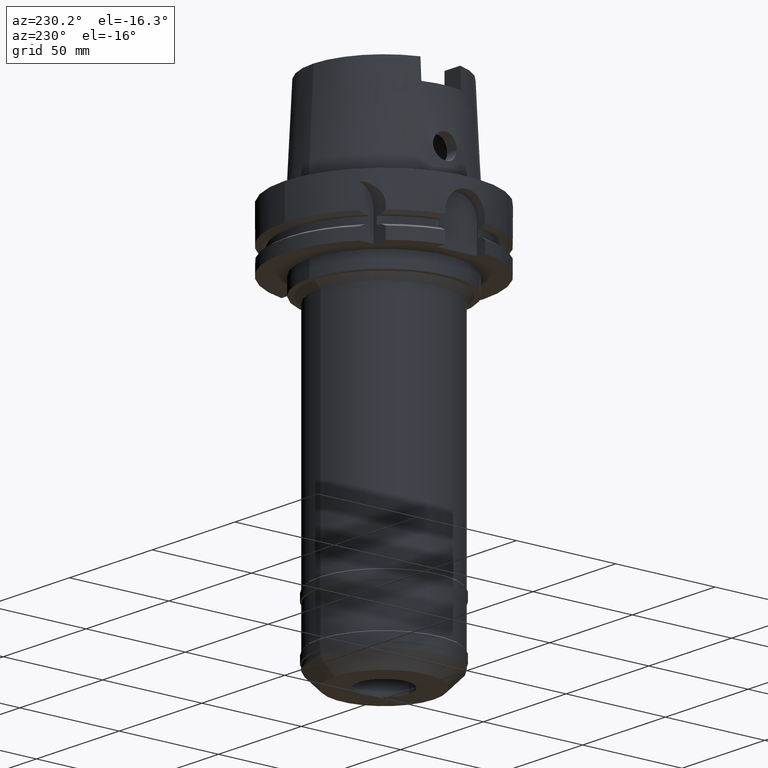
[diagram: clean part render]
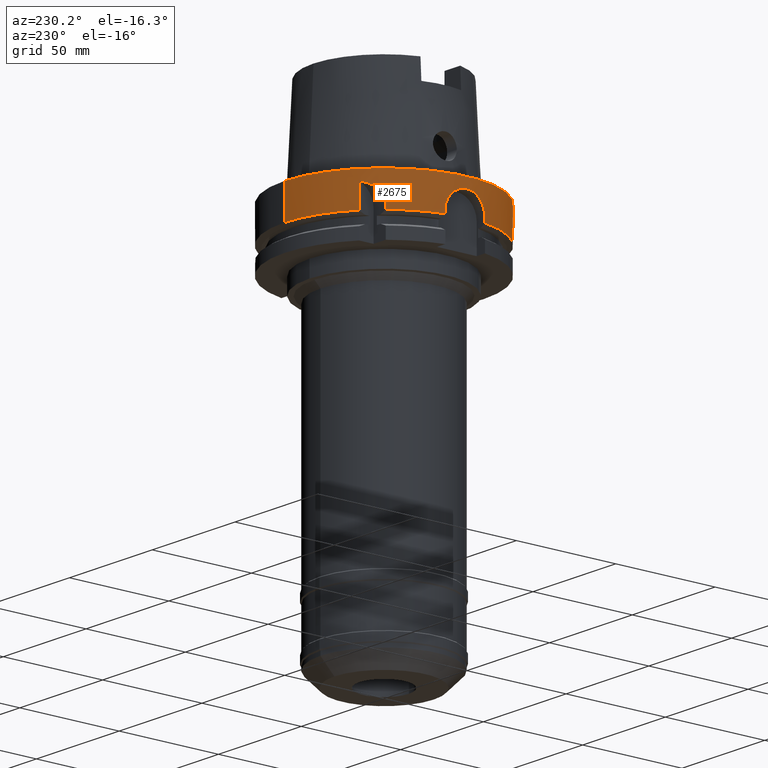
[diagram: same view with one face highlighted and labeled with its STEP entity id]
A machine part, auxiliary view. The second image highlights one B-rep face of the part: STEP entity #2675.
In plain terms, the highlighted cylindrical surface (partial cylindrical patch) has radius 50 mm, axis along (0, 0, 1).
Its self-contained STEP definition (entity closure, byte-faithful):
#342=CARTESIAN_POINT('',(0.E0,0.E0,0.E0));
#343=DIRECTION('',(0.E0,0.E0,-1.E0));
#344=DIRECTION('',(0.E0,-1.E0,0.E0));
#345=AXIS2_PLACEMENT_3D('',#342,#343,#344);
#374=DIRECTION('',(-3.028823767049E-7,-2.457085509676E-7,-9.999999999999E-1));
#375=VECTOR('',#374,1.175239179145E1);
#376=CARTESIAN_POINT('',(-3.15E1,3.882975663071E1,-5.000000000003E0));
#377=LINE('',#376,#375);
#381=DIRECTION('',(0.E0,2.969006079282E-14,-1.E0));
#382=VECTOR('',#381,1.675240473581E1);
#383=CARTESIAN_POINT('',(0.E0,-5.E1,0.E0));
#384=LINE('',#383,#382);
#388=DIRECTION('',(3.933032361779E-13,-2.534170336198E-14,1.E0));
#389=VECTOR('',#388,1.752404735809E0);
#390=CARTESIAN_POINT('',(-4.898979485566E1,-1.E1,-1.675240473581E1));
#391=LINE('',#390,#389);
#395=DIRECTION('',(-4.014125812538E-13,-2.635537149646E-14,-1.E0));
#396=VECTOR('',#395,1.752404735809E0);
#397=CARTESIAN_POINT('',(-4.898979485566E1,1.E1,-1.5E1));
#398=LINE('',#397,#396);
#402=DIRECTION('',(3.166955095330E-7,3.903884141536E-7,9.999999999999E-1));
#403=VECTOR('',#402,2.115509879696E0);
#404=CARTESIAN_POINT('',(-3.882975730068E1,3.149999917413E1,-1.675240773890E1));
#405=LINE('',#404,#403);
#409=CARTESIAN_POINT('',(-3.882975663071E1,3.15E1,-1.463689785920E1));
#410=CARTESIAN_POINT('',(-3.882975663071E1,3.15E1,-1.430492284043E1));
#411=CARTESIAN_POINT('',(-3.880306305411E1,3.153294676414E1,-1.364354479585E1));
#412=CARTESIAN_POINT('',(-3.868260618181E1,3.168085936961E1,-1.265734999215E1));
#413=CARTESIAN_POINT('',(-3.847869870973E1,3.192864492541E1,-1.168255826739E1));
#414=CARTESIAN_POINT('',(-3.818849911288E1,3.227581151035E1,-1.073028777271E1));
#415=CARTESIAN_POINT('',(-3.780492601517E1,3.272509106439E1,-9.803815114848E0));
#416=CARTESIAN_POINT('',(-3.732217201219E1,3.327569357448E1,-8.915625450328E0));
#417=CARTESIAN_POINT('',(-3.672707010142E1,3.393274471826E1,-8.069760260003E0));
#418=CARTESIAN_POINT('',(-3.601005215370E1,3.469438338202E1,-7.282017628278E0));
#419=CARTESIAN_POINT('',(-3.515380475181E1,3.556378570305E1,-6.562256664588E0));
#420=CARTESIAN_POINT('',(-3.413834344921E1,3.654215691419E1,-5.925485466514E0));
#421=CARTESIAN_POINT('',(-3.294304152099E1,3.762639641413E1,-5.390150736852E0));
#422=CARTESIAN_POINT('',(-3.200581941704E1,3.841941896652E1,-5.113698561819E0));
#423=CARTESIAN_POINT('',(-3.15E1,3.882975663071E1,-5.000000000003E0));
#568=CARTESIAN_POINT('',(0.E0,0.E0,-1.675240473581E1));
#569=DIRECTION('',(0.E0,0.E0,1.E0));
#570=DIRECTION('',(-7.765951326142E-1,6.3E-1,0.E0));
#571=AXIS2_PLACEMENT_3D('',#568,#569,#570);
#709=CARTESIAN_POINT('',(-4.898979485566E1,1.E1,-1.5E1));
#710=CARTESIAN_POINT('',(-4.898979485566E1,1.E1,-1.420415622963E1));
#711=CARTESIAN_POINT('',(-4.902948719698E1,9.809113072725E0,-1.260616822388E1));
#712=CARTESIAN_POINT('',(-4.919619653332E1,8.952747853454E0,-1.032786855290E1));
#713=CARTESIAN_POINT('',(-4.943361285315E1,7.564353864003E0,-8.308027870382E0));
#714=CARTESIAN_POINT('',(-4.968504833387E1,5.724733146835E0,-6.680051649924E0));
#715=CARTESIAN_POINT('',(-4.989058109186E1,3.559312314136E0,-5.550486982688E0));
#716=CARTESIAN_POINT('',(-5.000467878483E1,1.205525729352E0,-4.975889669452E0));
#717=CARTESIAN_POINT('',(-5.000461128930E1,-1.208480370273E0,
-4.976255620472E0));
#718=CARTESIAN_POINT('',(-4.989038623941E1,-3.561992694706E0,
-5.551493353084E0));
#719=CARTESIAN_POINT('',(-4.968476382E1,-5.727174752329E0,-6.681739813675E0));
#720=CARTESIAN_POINT('',(-4.943331925418E1,-7.566227057507E0,
-8.310130075757E0));
#721=CARTESIAN_POINT('',(-4.919592738318E1,-8.954227214303E0,
-1.033067458653E1));
#722=CARTESIAN_POINT('',(-4.902936827483E1,-9.809622582661E0,
-1.260874144530E1));
#723=CARTESIAN_POINT('',(-4.898979485566E1,-1.E1,-1.420518581019E1));
#724=CARTESIAN_POINT('',(-4.898979485566E1,-1.E1,-1.5E1));
#790=CARTESIAN_POINT('',(0.E0,0.E0,-1.675240473581E1));
#791=DIRECTION('',(0.E0,0.E0,1.E0));
#792=DIRECTION('',(-9.797958971133E-1,-2.E-1,0.E0));
#793=AXIS2_PLACEMENT_3D('',#790,#791,#792);
#837=DIRECTION('',(0.E0,-2.969006079282E-14,-1.E0));
#838=VECTOR('',#837,1.675240473581E1);
#839=CARTESIAN_POINT('',(0.E0,5.E1,0.E0));
#840=LINE('',#839,#838);
#1126=CARTESIAN_POINT('',(0.E0,0.E0,-1.675240473581E1));
#1127=DIRECTION('',(0.E0,0.E0,1.E0));
#1128=DIRECTION('',(0.E0,1.E0,0.E0));
#1129=AXIS2_PLACEMENT_3D('',#1126,#1127,#1128);
#2162=CARTESIAN_POINT('',(0.E0,-5.E1,0.E0));
#2163=CARTESIAN_POINT('',(0.E0,5.E1,0.E0));
#2164=VERTEX_POINT('',#2162);
#2165=VERTEX_POINT('',#2163);
#2166=CARTESIAN_POINT('',(-3.15E1,3.882975663071E1,-5.000000000003E0));
#2167=CARTESIAN_POINT('',(-3.150000355959E1,3.882975374305E1,
-1.675239179145E1));
#2168=VERTEX_POINT('',#2166);
#2169=VERTEX_POINT('',#2167);
#2170=CARTESIAN_POINT('',(0.E0,5.E1,-1.675240473581E1));
#2171=VERTEX_POINT('',#2170);
#2172=CARTESIAN_POINT('',(0.E0,-5.E1,-1.675240473581E1));
#2173=VERTEX_POINT('',#2172);
#2174=CARTESIAN_POINT('',(-4.898979485566E1,-1.E1,-1.675240473581E1));
#2175=VERTEX_POINT('',#2174);
#2176=CARTESIAN_POINT('',(-4.898979485566E1,-1.E1,-1.5E1));
#2177=VERTEX_POINT('',#2176);
#2178=VERTEX_POINT('',#709);
#2179=CARTESIAN_POINT('',(-4.898979485566E1,1.E1,-1.675240473581E1));
#2180=VERTEX_POINT('',#2179);
#2181=CARTESIAN_POINT('',(-3.882975663071E1,3.15E1,-1.675240473581E1));
#2182=VERTEX_POINT('',#2181);
#2183=CARTESIAN_POINT('',(-3.882975663071E1,3.15E1,-1.463689785920E1));
#2184=VERTEX_POINT('',#2183);
#2645=CARTESIAN_POINT('',(0.E0,0.E0,-2.0725E2));
#2646=DIRECTION('',(0.E0,0.E0,1.E0));
#2647=DIRECTION('',(0.E0,1.E0,0.E0));
#2648=AXIS2_PLACEMENT_3D('',#2645,#2646,#2647);
#2649=CYLINDRICAL_SURFACE('',#2648,5.E1);
#2651=ORIENTED_EDGE('',*,*,#2650,.T.);
#2653=ORIENTED_EDGE('',*,*,#2652,.F.);
#2655=ORIENTED_EDGE('',*,*,#2654,.F.);
#2656=ORIENTED_EDGE('',*,*,#2634,.F.);
#2658=ORIENTED_EDGE('',*,*,#2657,.T.);
#2660=ORIENTED_EDGE('',*,*,#2659,.F.);
#2662=ORIENTED_EDGE('',*,*,#2661,.T.);
#2664=ORIENTED_EDGE('',*,*,#2663,.F.);
#2666=ORIENTED_EDGE('',*,*,#2665,.T.);
#2668=ORIENTED_EDGE('',*,*,#2667,.F.);
#2670=ORIENTED_EDGE('',*,*,#2669,.T.);
#2672=ORIENTED_EDGE('',*,*,#2671,.T.);
#2673=EDGE_LOOP('',(#2651,#2653,#2655,#2656,#2658,#2660,#2662,#2664,#2666,#2668,
#2670,#2672));
#2674=FACE_OUTER_BOUND('',#2673,.F.);
#346=CIRCLE('',#345,5.E1);
#424=B_SPLINE_CURVE_WITH_KNOTS('',3,(#409,#410,#411,#412,#413,#414,#415,#416,
#417,#418,#419,#420,#421,#422,#423),.UNSPECIFIED.,.F.,.F.,(4,1,1,1,1,1,1,1,1,1,
1,1,4),(0.E0,8.333333333333E-2,1.666666666667E-1,2.5E-1,3.333333333333E-1,
4.166666666667E-1,5.E-1,5.833333333333E-1,6.666666666667E-1,7.5E-1,
8.333333333333E-1,9.166666666667E-1,1.E0),.UNSPECIFIED.);
#572=CIRCLE('',#571,5.E1);
#725=B_SPLINE_CURVE_WITH_KNOTS('',3,(#709,#710,#711,#712,#713,#714,#715,#716,
#717,#718,#719,#720,#721,#722,#723,#724),.UNSPECIFIED.,.F.,.F.,(4,1,1,1,1,1,1,1,
1,1,1,1,1,4),(0.E0,7.692307692308E-2,1.538461538462E-1,2.307692307692E-1,
3.076923076923E-1,3.846153846154E-1,4.615384615385E-1,5.384615384615E-1,
6.153846153846E-1,6.923076923077E-1,7.692307692308E-1,8.461538461538E-1,
9.230769230769E-1,1.E0),.UNSPECIFIED.);
#794=CIRCLE('',#793,5.E1);
#1130=CIRCLE('',#1129,5.E1);
#2634=EDGE_CURVE('',#2164,#2165,#346,.T.);
#2650=EDGE_CURVE('',#2168,#2169,#377,.T.);
#2652=EDGE_CURVE('',#2171,#2169,#1130,.T.);
#2654=EDGE_CURVE('',#2165,#2171,#840,.T.);
#2657=EDGE_CURVE('',#2164,#2173,#384,.T.);
#2659=EDGE_CURVE('',#2175,#2173,#794,.T.);
#2661=EDGE_CURVE('',#2175,#2177,#391,.T.);
#2663=EDGE_CURVE('',#2178,#2177,#725,.T.);
#2665=EDGE_CURVE('',#2178,#2180,#398,.T.);
#2667=EDGE_CURVE('',#2182,#2180,#572,.T.);
#2669=EDGE_CURVE('',#2182,#2184,#405,.T.);
#2671=EDGE_CURVE('',#2184,#2168,#424,.T.);
#2675=ADVANCED_FACE('',(#2674),#2649,.T.);